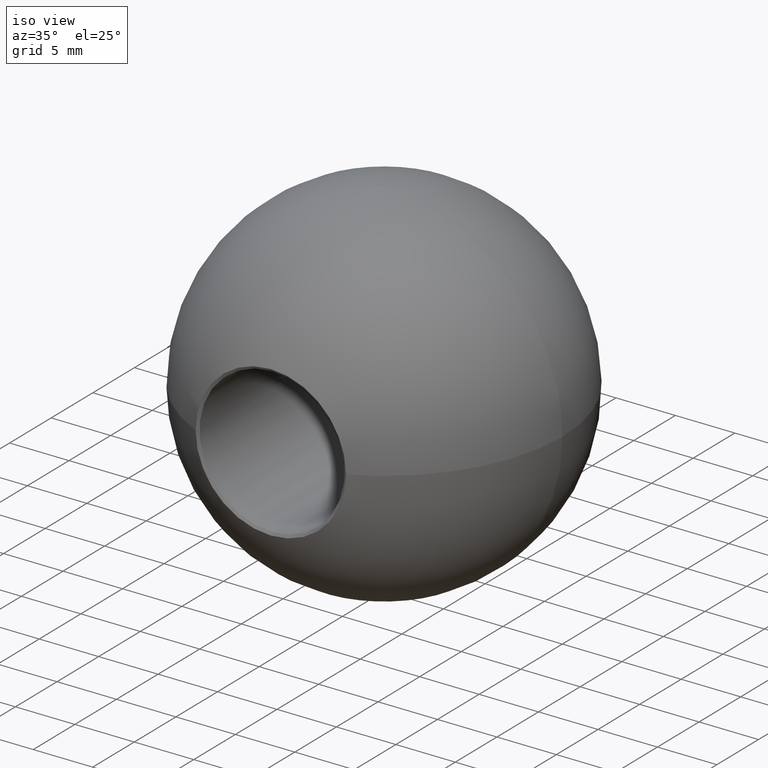
[diagram: clean part render]
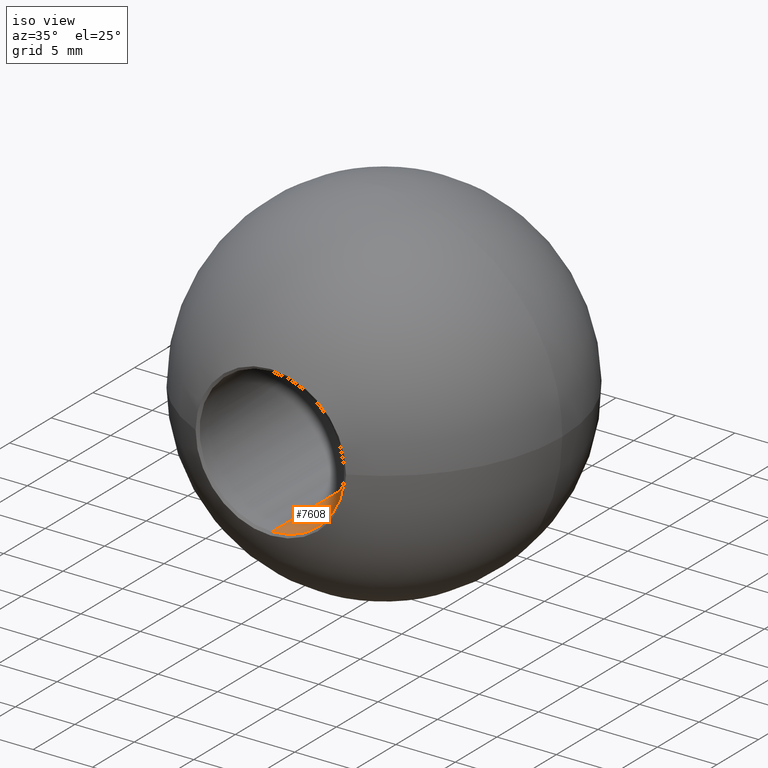
[diagram: same view with one face highlighted and labeled with its STEP entity id]
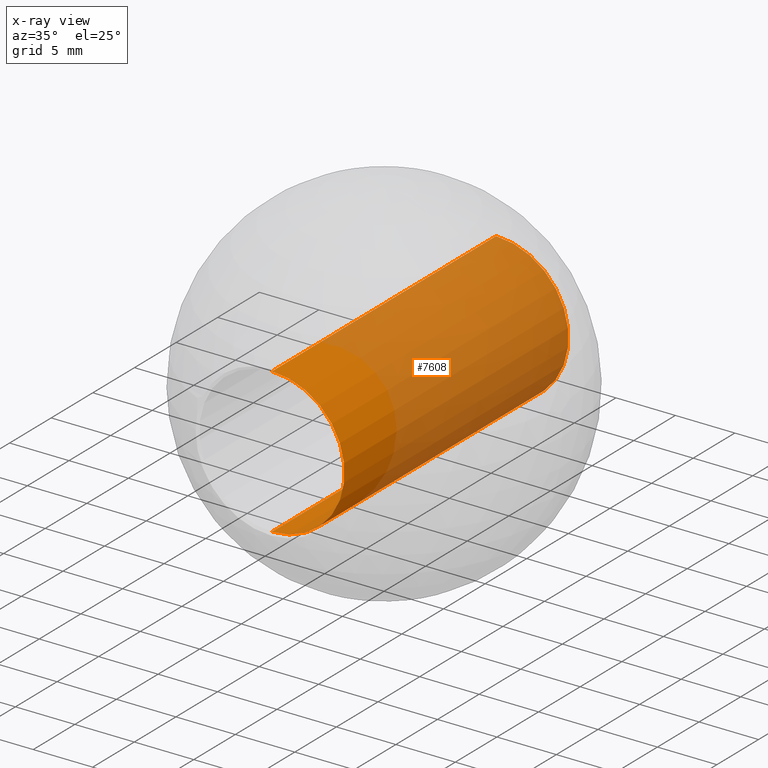
[diagram: x-ray of the same camera — body ghosted, the highlighted face saturated]
A machine part, iso view. The second image highlights one B-rep face of the part: STEP entity #7608.
The next image is the same camera in x-ray: the body ghosted, the highlighted face saturated — about 75% of this face is hidden behind the body in this view.
In plain terms, the highlighted cylindrical surface (partial cylindrical patch) has radius 6.1 mm, axis along (-0, 1, -0).
Its self-contained STEP definition (entity closure, byte-faithful):
#17 = VECTOR ( 'NONE', #3966, 1000.000000000000000 ) ;
#577 = EDGE_CURVE ( 'NONE', #11744, #5950, #10220, .T. ) ;
#778 = DIRECTION ( 'NONE',  ( 0.0000000000000000000, 0.0000000000000000000, 1.000000000000000000 ) ) ;
#1075 = CARTESIAN_POINT ( 'NONE',  ( 2.584004746200915000E-015, 10.00000000000000000, -6.100000000000000500 ) ) ;
#1560 = DIRECTION ( 'NONE',  ( -0.0000000000000000000, -1.000000000000000000, -0.0000000000000000000 ) ) ;
#1630 = CYLINDRICAL_SURFACE ( 'NONE', #8638, 6.100000000000000500 ) ;
#1683 = VECTOR ( 'NONE', #2048, 1000.000000000000000 ) ;
#1841 = CIRCLE ( 'NONE', #8458, 6.100000000000000500 ) ;
#2048 = DIRECTION ( 'NONE',  ( -0.0000000000000000000, 1.000000000000000000, -0.0000000000000000000 ) ) ;
#2150 = EDGE_CURVE ( 'NONE', #4265, #11744, #10955, .T. ) ;
#2419 = ORIENTED_EDGE ( 'NONE', *, *, #577, .T. ) ;
#3026 = VERTEX_POINT ( 'NONE', #7582 ) ;
#3064 = EDGE_CURVE ( 'NONE', #3026, #4265, #1841, .T. ) ;
#3132 = DIRECTION ( 'NONE',  ( 0.0000000000000000000, 0.0000000000000000000, -1.000000000000000000 ) ) ;
#3563 = CARTESIAN_POINT ( 'NONE',  ( 1.836970198721029600E-015, 13.45364914904053900, 6.100000000000000500 ) ) ;
#3966 = DIRECTION ( 'NONE',  ( -0.0000000000000000000, 1.000000000000000000, -0.0000000000000000000 ) ) ;
#3997 = ORIENTED_EDGE ( 'NONE', *, *, #2150, .T. ) ;
#4198 = ORIENTED_EDGE ( 'NONE', *, *, #3064, .T. ) ;
#4265 = VERTEX_POINT ( 'NONE', #9771 ) ;
#4630 = EDGE_CURVE ( 'NONE', #3026, #5950, #8595, .T. ) ;
#4632 = EDGE_LOOP ( 'NONE', ( #11671, #4198, #3997, #2419 ) ) ;
#5216 = AXIS2_PLACEMENT_3D ( 'NONE', #7679, #10645, #3132 ) ;
#5950 = VERTEX_POINT ( 'NONE', #8173 ) ;
#6060 = CARTESIAN_POINT ( 'NONE',  ( 1.836970198721029600E-015, -13.45364914904056500, 0.0000000000000000000 ) ) ;
#7582 = CARTESIAN_POINT ( 'NONE',  ( 2.584004746200915000E-015, -13.45364914904056500, -6.100000000000000500 ) ) ;
#7608 = ADVANCED_FACE ( 'NONE', ( #9763 ), #1630, .F. ) ;
#7679 = CARTESIAN_POINT ( 'NONE',  ( 1.836970198721029600E-015, 13.45364914904053900, 0.0000000000000000000 ) ) ;
#8173 = CARTESIAN_POINT ( 'NONE',  ( 2.584004746200915000E-015, 13.45364914904053900, -6.100000000000000500 ) ) ;
#8276 = DIRECTION ( 'NONE',  ( -0.0000000000000000000, 1.000000000000000000, -0.0000000000000000000 ) ) ;
#8325 = CARTESIAN_POINT ( 'NONE',  ( 1.836970198721029600E-015, 10.00000000000000000, 0.0000000000000000000 ) ) ;
#8458 = AXIS2_PLACEMENT_3D ( 'NONE', #6060, #1560, #11099 ) ;
#8595 = LINE ( 'NONE', #1075, #1683 ) ;
#8638 = AXIS2_PLACEMENT_3D ( 'NONE', #8325, #8276, #778 ) ;
#9763 = FACE_OUTER_BOUND ( 'NONE', #4632, .T. ) ;
#9771 = CARTESIAN_POINT ( 'NONE',  ( 1.836970198721029600E-015, -13.45364914904056500, 6.100000000000000500 ) ) ;
#10220 = CIRCLE ( 'NONE', #5216, 6.100000000000000500 ) ;
#10645 = DIRECTION ( 'NONE',  ( 0.0000000000000000000, 1.000000000000000000, 0.0000000000000000000 ) ) ;
#10955 = LINE ( 'NONE', #12127, #17 ) ;
#11099 = DIRECTION ( 'NONE',  ( 0.0000000000000000000, 0.0000000000000000000, 1.000000000000000000 ) ) ;
#11671 = ORIENTED_EDGE ( 'NONE', *, *, #4630, .F. ) ;
#11744 = VERTEX_POINT ( 'NONE', #3563 ) ;
#12127 = CARTESIAN_POINT ( 'NONE',  ( 1.836970198721029600E-015, 10.00000000000000000, 6.100000000000000500 ) ) ;